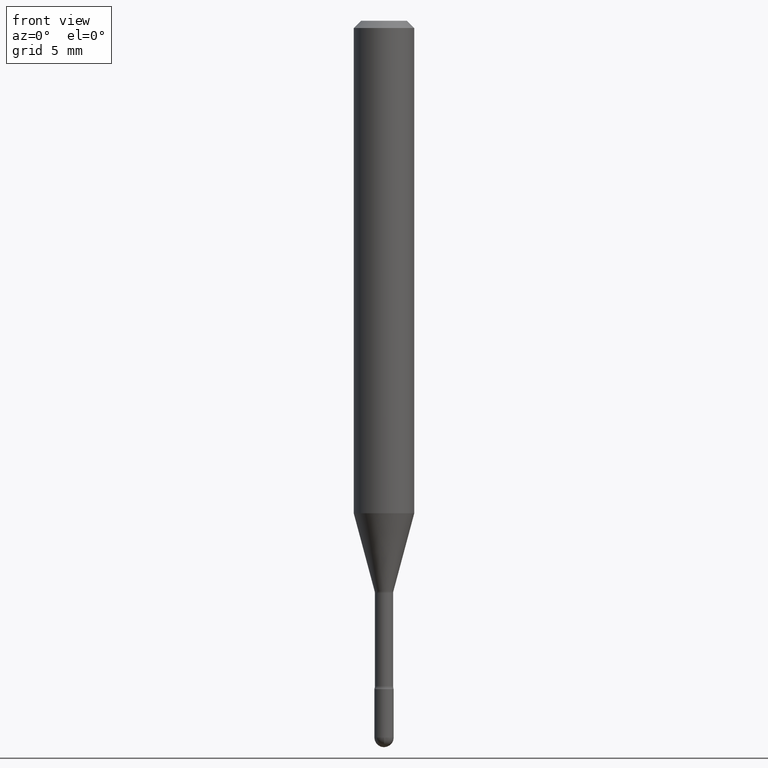
[diagram: clean part render]
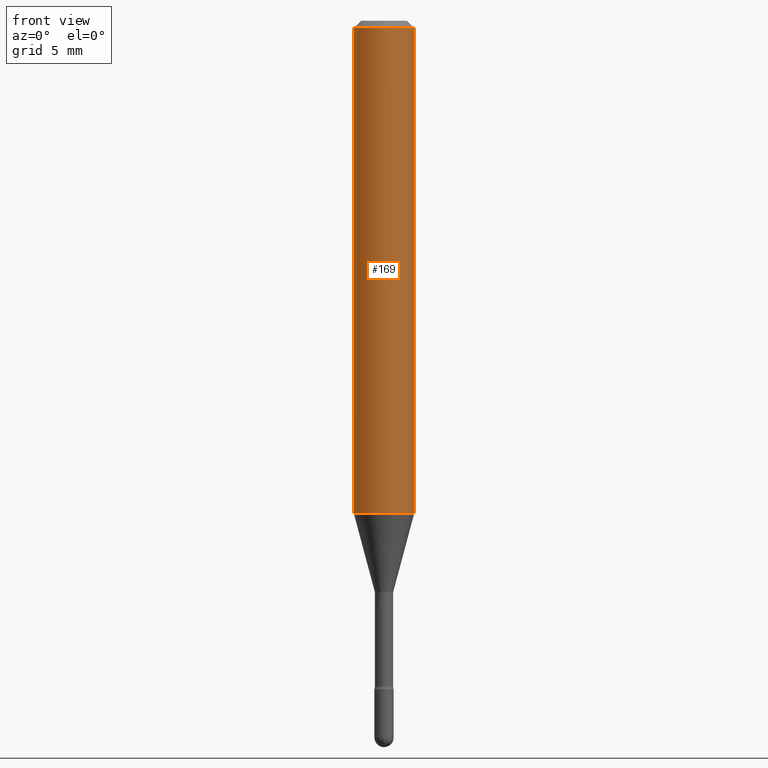
[diagram: same view with one face highlighted and labeled with its STEP entity id]
A machine part, front view. The second image highlights one B-rep face of the part: STEP entity #169.
In plain terms, the highlighted cylindrical surface (edge-blend (fillet) strip) has radius 1.5875 mm, axis along (-0, 0, 1).
Its self-contained STEP definition (entity closure, byte-faithful):
#8 = EDGE_CURVE ( 'NONE', #160, #27, #496, .T. ) ;
#26 = CARTESIAN_POINT ( 'NONE',  ( -1.169113584055446105E-44, 1.669184350826100908E-30, 4.780733988912460139E-16 ) ) ;
#27 = VERTEX_POINT ( 'NONE', #143 ) ;
#53 = CARTESIAN_POINT ( 'NONE',  ( -0.06250000000000000000, -3.106430912699308178E-15, -1.016909379709240335 ) ) ;
#56 = DIRECTION ( 'NONE',  ( 1.000000000000000000, -6.982962677686266711E-15, 0.000000000000000000 ) ) ;
#65 = ORIENTED_EDGE ( 'NONE', *, *, #427, .F. ) ;
#79 = AXIS2_PLACEMENT_3D ( 'NONE', #551, #471, #56 ) ;
#87 = CIRCLE ( 'NONE', #79, 0.06250000000000000000 ) ;
#96 = ORIENTED_EDGE ( 'NONE', *, *, #382, .F. ) ;
#100 = CARTESIAN_POINT ( 'NONE',  ( -0.06250000000000000000, 4.440892098500642925E-16, 4.780733988912429571E-16 ) ) ;
#106 = CYLINDRICAL_SURFACE ( 'NONE', #220, 0.06250000000000000000 ) ;
#138 = EDGE_CURVE ( 'NONE', #533, #160, #237, .T. ) ;
#143 = CARTESIAN_POINT ( 'NONE',  ( 0.06250000000000000000, -4.888073874380391431E-16, -0.01500000000000008271 ) ) ;
#149 = DIRECTION ( 'NONE',  ( -2.445468806185136597E-29, 3.491481338843145583E-15, 1.000000000000000000 ) ) ;
#160 = VERTEX_POINT ( 'NONE', #467 ) ;
#169 = ADVANCED_FACE ( 'NONE', ( #341 ), #106, .T. ) ;
#199 = DIRECTION ( 'NONE',  ( -2.445468806185136597E-29, 3.491481338843145583E-15, 1.000000000000000000 ) ) ;
#218 = EDGE_LOOP ( 'NONE', ( #65, #394, #562, #96 ) ) ;
#220 = AXIS2_PLACEMENT_3D ( 'NONE', #26, #199, #375 ) ;
#237 = CIRCLE ( 'NONE', #252, 0.06250000000000000000 ) ;
#252 = AXIS2_PLACEMENT_3D ( 'NONE', #337, #149, #552 ) ;
#271 = VECTOR ( 'NONE', #453, 39.37007874015748143 ) ;
#303 = VERTEX_POINT ( 'NONE', #359 ) ;
#337 = CARTESIAN_POINT ( 'NONE',  ( 2.486820166796023749E-29, -3.550520122549371189E-15, -1.016909379709240335 ) ) ;
#341 = FACE_OUTER_BOUND ( 'NONE', #218, .T. ) ;
#355 = VECTOR ( 'NONE', #466, 39.37007874015748143 ) ;
#356 = CARTESIAN_POINT ( 'NONE',  ( 0.06250000000000000000, -4.364351673553899931E-16, 4.780733988912490708E-16 ) ) ;
#359 = CARTESIAN_POINT ( 'NONE',  ( -0.06250000000000000000, -1.357356961465946715E-15, -0.01500000000000008271 ) ) ;
#375 = DIRECTION ( 'NONE',  ( 1.000000000000000000, -6.982962677686266711E-15, 4.852736867747366207E-29 ) ) ;
#382 = EDGE_CURVE ( 'NONE', #303, #27, #87, .T. ) ;
#384 = LINE ( 'NONE', #100, #355 ) ;
#394 = ORIENTED_EDGE ( 'NONE', *, *, #138, .T. ) ;
#427 = EDGE_CURVE ( 'NONE', #533, #303, #384, .T. ) ;
#453 = DIRECTION ( 'NONE',  ( -2.445468806185136877E-29, 3.491481338843145188E-15, 1.000000000000000000 ) ) ;
#466 = DIRECTION ( 'NONE',  ( -2.445468806185136877E-29, 3.491481338843145188E-15, 1.000000000000000000 ) ) ;
#467 = CARTESIAN_POINT ( 'NONE',  ( 0.06250000000000000000, -3.986955289904762858E-15, -1.016909379709240335 ) ) ;
#471 = DIRECTION ( 'NONE',  ( -2.445468806185136597E-29, 3.491481338843145583E-15, 1.000000000000000000 ) ) ;
#496 = LINE ( 'NONE', #356, #271 ) ;
#533 = VERTEX_POINT ( 'NONE', #53 ) ;
#551 = CARTESIAN_POINT ( 'NONE',  ( 3.668203209277725232E-31, -5.237222008264747365E-17, -0.01500000000000008271 ) ) ;
#552 = DIRECTION ( 'NONE',  ( 1.000000000000000000, -6.982962677686270655E-15, 0.000000000000000000 ) ) ;
#562 = ORIENTED_EDGE ( 'NONE', *, *, #8, .T. ) ;